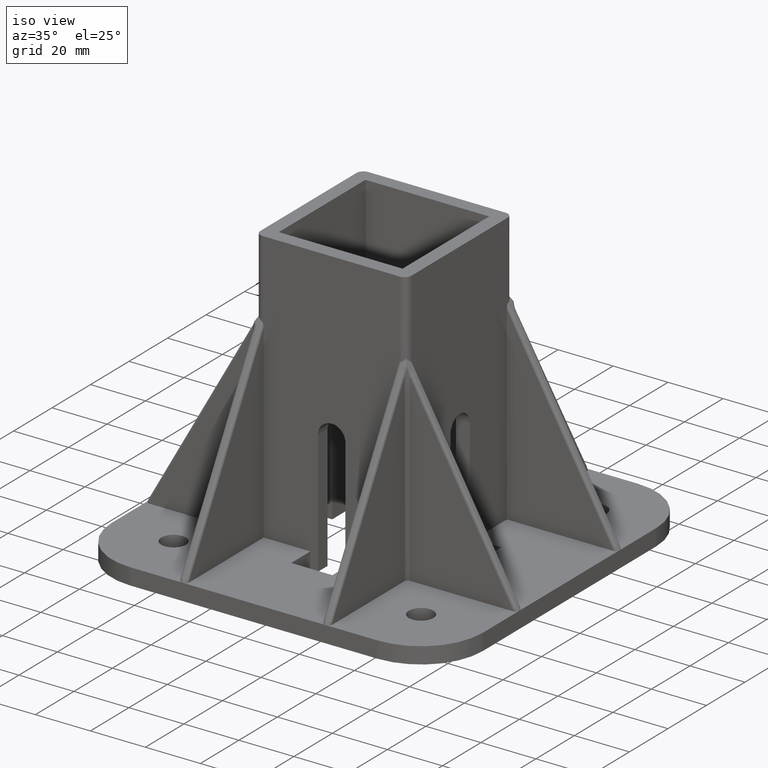
[diagram: clean part render]
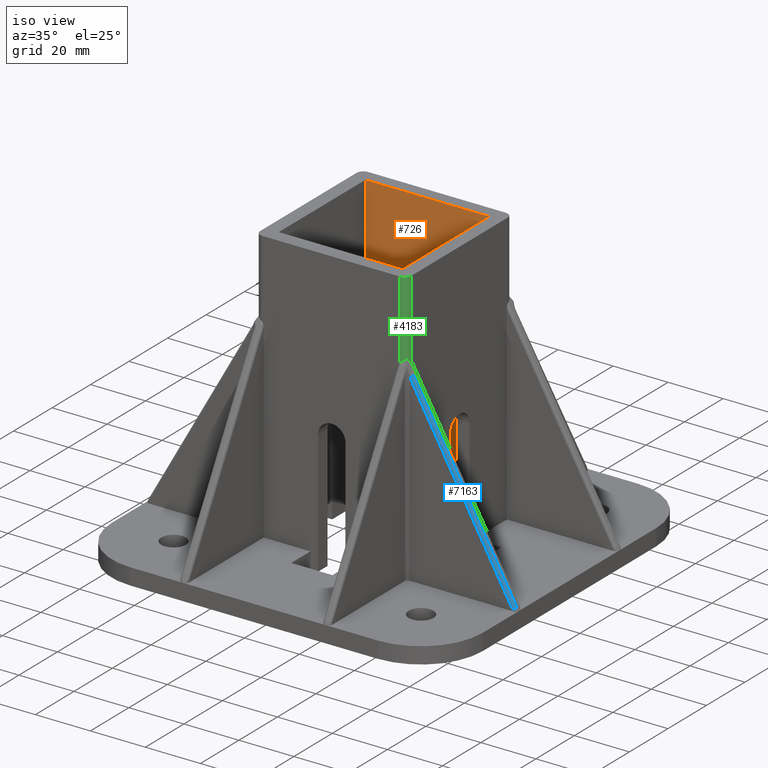
[diagram: same view with three faces highlighted in distinct colors, each labeled with its STEP entity id]
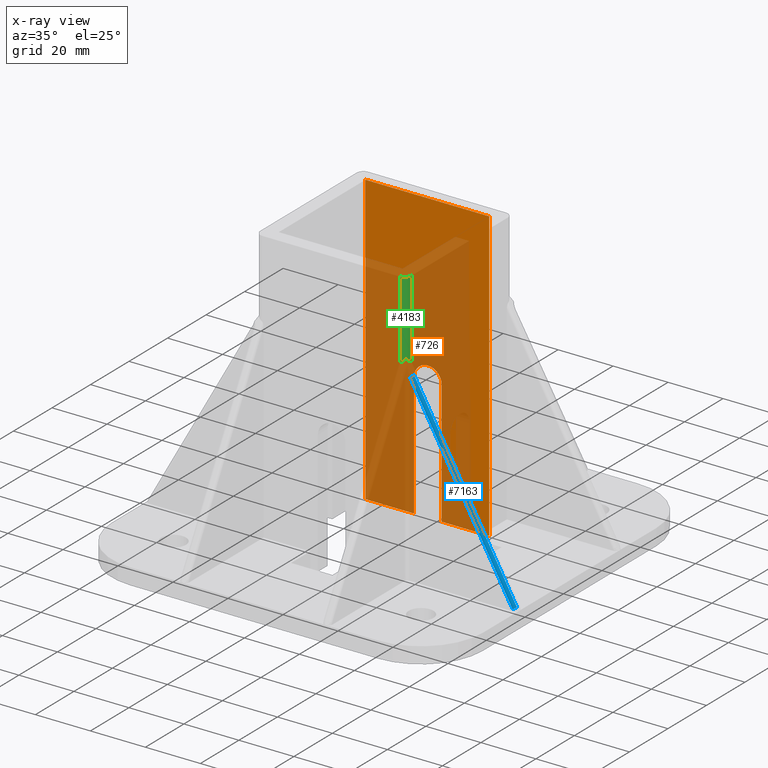
[diagram: x-ray of the same camera — body ghosted, the three highlighted faces saturated]
A machine part, iso view with three faces highlighted in distinct colors.
The next image is the same camera in x-ray (body ghosted, the three faces saturated) — at least one of them is partly hidden behind the body in this view.
Their STEP definitions:

[orange] entity #726 — the highlighted planar face has unit normal (0, -1, 0).
#279=CARTESIAN_POINT('',(22.499954999910017,-44.999909999819920,0.0));
#280=VERTEX_POINT('',#279);
#287=CARTESIAN_POINT('',(5.214749153700154,-44.999909999819920,0.0));
#288=VERTEX_POINT('',#287);
#289=CARTESIAN_POINT('',(22.499954999910017,-44.999909999819920,0.0));
#290=DIRECTION('',(-1.0,0.0,0.0));
#291=VECTOR('',#290,17.285205846209863);
#292=LINE('',#289,#291);
#293=EDGE_CURVE('',#280,#288,#292,.T.);
#343=CARTESIAN_POINT('',(-4.785230846259253,-44.999909999819920,0.0));
#344=VERTEX_POINT('',#343);
#351=CARTESIAN_POINT('',(-22.499954999909903,-44.999909999819920,0.0));
#352=VERTEX_POINT('',#351);
#353=CARTESIAN_POINT('',(-4.785230846259253,-44.999909999819920,0.0));
#354=DIRECTION('',(-1.0,0.0,0.0));
#355=VECTOR('',#354,17.714724153650650);
#356=LINE('',#353,#355);
#357=EDGE_CURVE('',#344,#352,#356,.T.);
#655=CARTESIAN_POINT('',(-22.499994370211283,-44.999909999819920,-0.000039370301366));
#656=DIRECTION('',(0.0,-1.0,0.0));
#657=DIRECTION('',(1.0,0.0,0.0));
#658=AXIS2_PLACEMENT_3D('',#655,#656,#657);
#659=PLANE('',#658);
#660=CARTESIAN_POINT('',(-22.499954999909903,-44.999909999819920,104.999789912801060));
#661=VERTEX_POINT('',#660);
#662=CARTESIAN_POINT('',(22.499954999910017,-44.999909999819920,104.999789912801060));
#663=VERTEX_POINT('',#662);
#664=CARTESIAN_POINT('',(-22.499954999909903,-44.999909999819920,104.999789912801060));
#665=DIRECTION('',(1.0,0.0,0.0));
#666=VECTOR('',#665,44.999909999819920);
#667=LINE('',#664,#666);
#668=EDGE_CURVE('',#661,#663,#667,.T.);
#669=ORIENTED_EDGE('',*,*,#668,.F.);
#670=CARTESIAN_POINT('',(-22.499954999909903,-44.999909999819920,104.999789912801060));
#671=DIRECTION('',(0.0,0.0,-1.0));
#672=VECTOR('',#671,104.999789912801060);
#673=LINE('',#670,#672);
#674=EDGE_CURVE('',#661,#352,#673,.T.);
#675=ORIENTED_EDGE('',*,*,#674,.T.);
#676=ORIENTED_EDGE('',*,*,#357,.F.);
#677=CARTESIAN_POINT('',(-4.785230846259253,-44.999909999819920,45.049900190535240));
#678=VERTEX_POINT('',#677);
#679=CARTESIAN_POINT('',(-4.785230846259253,-44.999909999819920,0.0));
#680=DIRECTION('',(0.0,0.0,1.0));
#681=VECTOR('',#680,45.049900190535240);
#682=LINE('',#679,#681);
#683=EDGE_CURVE('',#344,#678,#682,.T.);
#684=ORIENTED_EDGE('',*,*,#683,.T.);
#685=CARTESIAN_POINT('',(0.164768963005884,-44.999909999819920,49.999899999800377));
#686=VERTEX_POINT('',#685);
#687=CARTESIAN_POINT('',(0.164768963005884,-44.999909999819920,45.049900190535240));
#688=DIRECTION('',(0.0,1.0,0.0));
#689=DIRECTION('',(-1.0,0.0,0.0));
#690=AXIS2_PLACEMENT_3D('',#687,#688,#689);
#691=CIRCLE('',#690,4.949999809265137);
#692=EDGE_CURVE('',#678,#686,#691,.T.);
#693=ORIENTED_EDGE('',*,*,#692,.T.);
#694=CARTESIAN_POINT('',(0.264749344435018,-44.999909999819920,49.999899999800377));
#695=VERTEX_POINT('',#694);
#696=CARTESIAN_POINT('',(0.164768963005884,-44.999909999819920,49.999899999800377));
#697=DIRECTION('',(1.0,0.0,0.0));
#698=VECTOR('',#697,0.099980381429134);
#699=LINE('',#696,#698);
#700=EDGE_CURVE('',#686,#695,#699,.T.);
#701=ORIENTED_EDGE('',*,*,#700,.T.);
#702=CARTESIAN_POINT('',(5.214749153700154,-44.999909999819920,45.049900190535240));
#703=VERTEX_POINT('',#702);
#704=CARTESIAN_POINT('',(0.264749344435018,-44.999909999819920,45.049900190535240));
#705=DIRECTION('',(0.0,-1.0,0.0));
#706=DIRECTION('',(1.0,0.0,0.0));
#707=AXIS2_PLACEMENT_3D('',#704,#705,#706);
#708=CIRCLE('',#707,4.949999809265137);
#709=EDGE_CURVE('',#703,#695,#708,.T.);
#710=ORIENTED_EDGE('',*,*,#709,.F.);
#711=CARTESIAN_POINT('',(5.214749153700154,-44.999909999819920,0.0));
#712=DIRECTION('',(0.0,0.0,1.0));
#713=VECTOR('',#712,45.049900190535240);
#714=LINE('',#711,#713);
#715=EDGE_CURVE('',#288,#703,#714,.T.);
#716=ORIENTED_EDGE('',*,*,#715,.F.);
#717=ORIENTED_EDGE('',*,*,#293,.F.);
#718=CARTESIAN_POINT('',(22.499954999910017,-44.999909999819920,104.999789912801060));
#719=DIRECTION('',(0.0,0.0,-1.0));
#720=VECTOR('',#719,104.999789912801060);
#721=LINE('',#718,#720);
#722=EDGE_CURVE('',#663,#280,#721,.T.);
#723=ORIENTED_EDGE('',*,*,#722,.F.);
#724=EDGE_LOOP('',(#669,#675,#676,#684,#693,#701,#710,#716,#717,#723));
#725=FACE_OUTER_BOUND('',#724,.T.);
#726=ADVANCED_FACE('',(#725),#659,.T.);

[blue] entity #7163 — the highlighted cylindrical surface (edge-blend (fillet) strip) has radius 1 mm, axis along (-0.4908, 0, 0.8712).
#3230=CARTESIAN_POINT('',(29.568716652595697,-93.999809999620084,73.327776316139747));
#3231=VERTEX_POINT('',#3230);
#3268=CARTESIAN_POINT('',(28.697469024850818,-94.999809999620084,72.836932582198983));
#3269=VERTEX_POINT('',#3268);
#3282=CARTESIAN_POINT('',(28.697469024850825,-93.999809999620084,72.836932582198983));
#3283=DIRECTION('',(-0.490843733940776,1.238117E-014,0.871247627744878));
#3284=DIRECTION('',(0.0,-1.0,1.421085E-014));
#3285=AXIS2_PLACEMENT_3D('',#3282,#3283,#3284);
#3286=CIRCLE('',#3285,1.0);
#3287=EDGE_CURVE('',#3269,#3231,#3286,.T.);
#5147=CARTESIAN_POINT('',(66.871115627480776,-93.999809999620084,7.116018135718550));
#5148=VERTEX_POINT('',#5147);
#5198=CARTESIAN_POINT('',(29.568716652595697,-93.999809999620084,73.327776316139747));
#5199=DIRECTION('',(0.490843733940776,0.0,-0.871247627744878));
#5200=VECTOR('',#5199,75.996486041290652);
#5201=LINE('',#5198,#5200);
#5202=EDGE_CURVE('',#3231,#5148,#5201,.T.);
#5302=CARTESIAN_POINT('',(65.999867999735784,-94.999809999620084,6.625174401777736));
#5303=VERTEX_POINT('',#5302);
#5310=CARTESIAN_POINT('',(28.697469024850818,-94.999809999620084,72.836932582198983));
#5311=DIRECTION('',(0.490843733940776,0.0,-0.871247627744878));
#5312=VECTOR('',#5311,75.996486041290666);
#5313=LINE('',#5310,#5312);
#5314=EDGE_CURVE('',#3269,#5303,#5313,.T.);
#7142=CARTESIAN_POINT('',(65.999867999735969,-93.999809999621021,6.625174401777752));
#7143=DIRECTION('',(0.490843733940776,-1.238117E-014,-0.871247627744878));
#7144=DIRECTION('',(0.0,-1.0,1.421085E-014));
#7145=AXIS2_PLACEMENT_3D('',#7142,#7143,#7144);
#7146=CIRCLE('',#7145,1.0);
#7147=EDGE_CURVE('',#5148,#5303,#7146,.T.);
#7152=CARTESIAN_POINT('',(28.697469024850818,-93.999809999620084,72.836932582198969));
#7153=DIRECTION('',(-0.490843733940776,1.238117E-014,0.871247627744878));
#7154=DIRECTION('',(0.0,-1.0,1.421085E-014));
#7155=AXIS2_PLACEMENT_3D('',#7152,#7153,#7154);
#7156=CYLINDRICAL_SURFACE('',#7155,1.0);
#7157=ORIENTED_EDGE('',*,*,#7147,.F.);
#7158=ORIENTED_EDGE('',*,*,#5202,.F.);
#7159=ORIENTED_EDGE('',*,*,#3287,.F.);
#7160=ORIENTED_EDGE('',*,*,#5314,.T.);
#7161=EDGE_LOOP('',(#7157,#7158,#7159,#7160));
#7162=FACE_OUTER_BOUND('',#7161,.T.);
#7163=ADVANCED_FACE('',(#7162),#7156,.T.);

[green] entity #4183 — the highlighted cylindrical surface (edge-blend (fillet) strip) has radius 2.5 mm, axis along (0, 0, 1).
#1757=CARTESIAN_POINT('',(27.499944999890033,-92.499809999620155,104.999789912801060));
#1758=VERTEX_POINT('',#1757);
#1810=CARTESIAN_POINT('',(24.999944999890033,-94.999809999620155,104.999789912801060));
#1811=VERTEX_POINT('',#1810);
#1818=CARTESIAN_POINT('',(24.999944999890033,-92.499809999620155,104.999789912801060));
#1819=DIRECTION('',(0.0,0.0,1.0));
#1820=DIRECTION('',(0.0,-1.0,0.0));
#1821=AXIS2_PLACEMENT_3D('',#1818,#1819,#1820);
#1822=CIRCLE('',#1821,2.500000000000000);
#1823=EDGE_CURVE('',#1811,#1758,#1822,.T.);
#4073=CARTESIAN_POINT('',(27.499944999890033,-92.499809999620169,76.726891388911937));
#4074=VERTEX_POINT('',#4073);
#4075=CARTESIAN_POINT('',(27.499944999890033,-92.499809999620155,104.999789912801060));
#4076=DIRECTION('',(0.0,0.0,-1.0));
#4077=VECTOR('',#4076,28.272898523889125);
#4078=LINE('',#4075,#4077);
#4079=EDGE_CURVE('',#1758,#4074,#4078,.T.);
#4130=CARTESIAN_POINT('',(24.999944999890033,-92.499809999620155,104.999789912801060));
#4131=DIRECTION('',(0.0,0.0,1.0));
#4132=DIRECTION('',(-0.000001574803173,-0.999999999998760,0.0));
#4133=AXIS2_PLACEMENT_3D('',#4130,#4131,#4132);
#4134=CYLINDRICAL_SURFACE('',#4133,2.500000000000000);
#4135=CARTESIAN_POINT('',(26.767711953891165,-94.267576951551760,78.299559656340293));
#4136=VERTEX_POINT('',#4135);
#4137=CARTESIAN_POINT('',(27.449433517918237,-92.999815999632119,77.089503880192240));
#4138=VERTEX_POINT('',#4137);
#4139=CARTESIAN_POINT('',(24.999944999890030,-92.499809999620140,81.437345999692312));
#4140=DIRECTION('',(0.871247627744878,1.667501E-016,0.490843733940776));
#4141=DIRECTION('',(0.490843733940776,9.394372E-017,-0.871247627744878));
#4142=AXIS2_PLACEMENT_3D('',#4139,#4140,#4141);
#4143=ELLIPSE('',#4142,5.093270682969839,2.500000000000000);
#4144=EDGE_CURVE('',#4136,#4138,#4143,.T.);
#4145=ORIENTED_EDGE('',*,*,#4144,.T.);
#4146=CARTESIAN_POINT('',(27.499944999890033,-92.499809999620155,76.726891388911937));
#4147=CARTESIAN_POINT('',(27.499944999890033,-92.570960660603660,76.810583015591050));
#4148=CARTESIAN_POINT('',(27.494300982740441,-92.724197421565208,76.955728412744520));
#4149=CARTESIAN_POINT('',(27.468031940808089,-92.908703846335825,77.056491679562711));
#4150=CARTESIAN_POINT('',(27.449433517918237,-92.999815999632119,77.089503880192225));
#4151=B_SPLINE_CURVE_WITH_KNOTS('',3,(#4146,#4147,#4148,#4149,#4150),.UNSPECIFIED.,.F.,.U.,(4,1,4),(0.0,0.330418783607882,0.627487505051930),.UNSPECIFIED.);
#4152=EDGE_CURVE('',#4074,#4138,#4151,.T.);
#4153=ORIENTED_EDGE('',*,*,#4152,.F.);
#4154=ORIENTED_EDGE('',*,*,#4079,.F.);
#4155=ORIENTED_EDGE('',*,*,#1823,.F.);
#4156=CARTESIAN_POINT('',(24.999944999890033,-94.999809999620155,76.726891389497197));
#4157=VERTEX_POINT('',#4156);
#4158=CARTESIAN_POINT('',(24.999944999890033,-94.999809999620155,104.999789912801060));
#4159=DIRECTION('',(0.0,0.0,-1.0));
#4160=VECTOR('',#4159,28.272898523303866);
#4161=LINE('',#4158,#4160);
#4162=EDGE_CURVE('',#1811,#4157,#4161,.T.);
#4163=ORIENTED_EDGE('',*,*,#4162,.T.);
#4164=CARTESIAN_POINT('',(25.499950999901841,-94.949298517648373,77.089503879938405));
#4165=VERTEX_POINT('',#4164);
#4166=CARTESIAN_POINT('',(24.999944999890033,-94.999809999620155,76.726891389497197));
#4167=CARTESIAN_POINT('',(25.071095660870640,-94.999809999620155,76.810583015993330));
#4168=CARTESIAN_POINT('',(25.224332421872901,-94.994165982466527,76.955728412858434));
#4169=CARTESIAN_POINT('',(25.408838846599537,-94.967896940539489,77.056491679399983));
#4170=CARTESIAN_POINT('',(25.499950999901841,-94.949298517648401,77.089503879938363));
#4171=B_SPLINE_CURVE_WITH_KNOTS('',3,(#4166,#4167,#4168,#4169,#4170),.UNSPECIFIED.,.F.,.U.,(4,1,4),(0.0,0.330418783182754,0.627487504551740),.UNSPECIFIED.);
#4172=EDGE_CURVE('',#4157,#4165,#4171,.T.);
#4173=ORIENTED_EDGE('',*,*,#4172,.T.);
#4174=CARTESIAN_POINT('',(24.999944999890037,-92.499809999620183,81.437345987151502));
#4175=DIRECTION('',(5.836254E-016,-0.871247627151677,0.490843734993707));
#4176=DIRECTION('',(3.288030E-016,-0.490843734993707,-0.871247627151677));
#4177=AXIS2_PLACEMENT_3D('',#4174,#4175,#4176);
#4178=ELLIPSE('',#4177,5.093270672044028,2.500000000000000);
#4179=EDGE_CURVE('',#4165,#4136,#4178,.T.);
#4180=ORIENTED_EDGE('',*,*,#4179,.T.);
#4181=EDGE_LOOP('',(#4145,#4153,#4154,#4155,#4163,#4173,#4180));
#4182=FACE_OUTER_BOUND('',#4181,.T.);
#4183=ADVANCED_FACE('',(#4182),#4134,.T.);